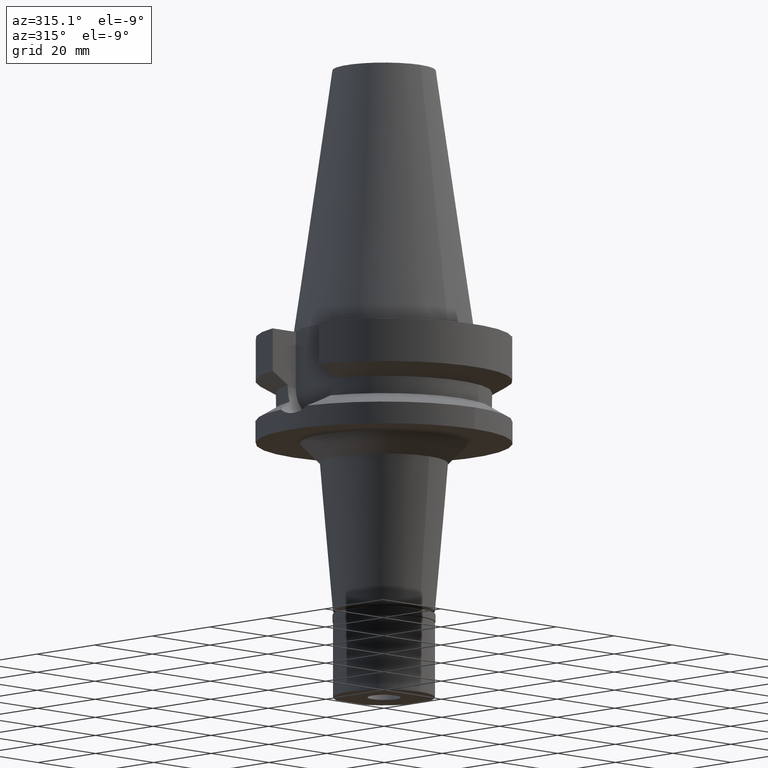
[diagram: clean part render]
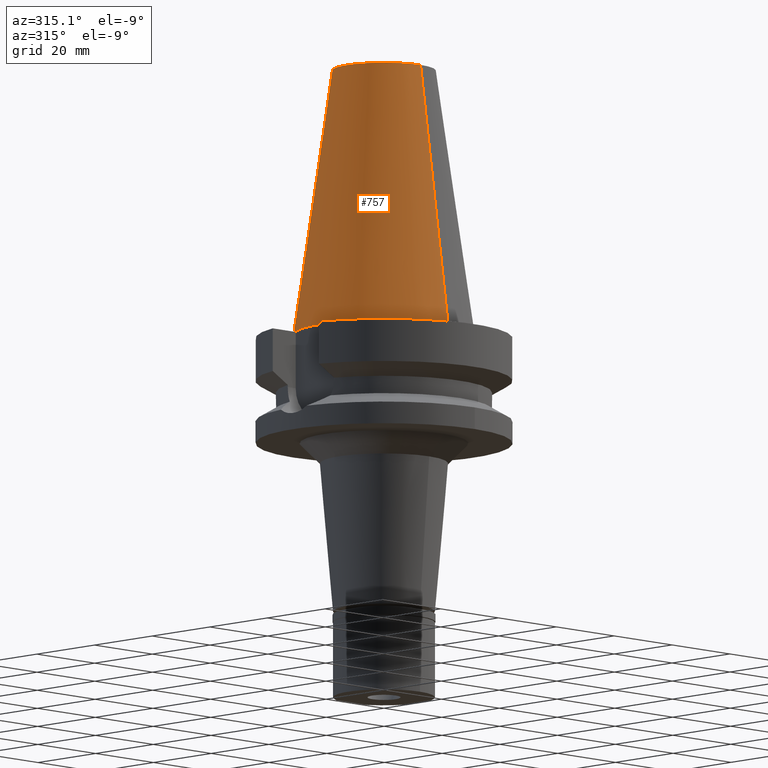
[diagram: same view with one face highlighted and labeled with its STEP entity id]
A machine part, auxiliary view. The second image highlights one B-rep face of the part: STEP entity #757.
In plain terms, the highlighted conical surface has half-angle 8.297 deg.
Its self-contained STEP definition (entity closure, byte-faithful):
#60 = EDGE_CURVE ( 'NONE', #2696, #1960, #275, .T. ) ;
#64 = DIRECTION ( 'NONE',  ( 0.0000000000000000000, 0.0000000000000000000, -1.000000000000000000 ) ) ;
#87 = AXIS2_PLACEMENT_3D ( 'NONE', #1161, #1845, #2828 ) ;
#182 = VECTOR ( 'NONE', #2851, 1000.000000000000114 ) ;
#191 = ORIENTED_EDGE ( 'NONE', *, *, #852, .T. ) ;
#213 = CARTESIAN_POINT ( 'NONE',  ( 0.0000000000000000000, 12.68766899429999917, 65.40000000000000568 ) ) ;
#235 = VECTOR ( 'NONE', #1541, 1000.000000000000114 ) ;
#259 = ORIENTED_EDGE ( 'NONE', *, *, #1562, .F. ) ;
#275 = CIRCLE ( 'NONE', #2423, 12.68766899429999917 ) ;
#401 = DIRECTION ( 'NONE',  ( 0.0000000000000000000, 0.0000000000000000000, -1.000000000000000000 ) ) ;
#452 = DIRECTION ( 'NONE',  ( 0.0000000000000000000, -1.000000000000000000, 0.0000000000000000000 ) ) ;
#624 = CARTESIAN_POINT ( 'NONE',  ( 0.0000000000000000000, 22.22500000000000142, 9.237055564880999494E-14 ) ) ;
#669 = VERTEX_POINT ( 'NONE', #624 ) ;
#749 = CARTESIAN_POINT ( 'NONE',  ( 0.0000000000000000000, 1.625106302469000024E-14, 65.40000000000000568 ) ) ;
#757 = ADVANCED_FACE ( 'NONE', ( #1585 ), #1106, .T. ) ;
#807 = CARTESIAN_POINT ( 'NONE',  ( 0.0000000000000000000, -22.22500000000000142, 9.237055564880999494E-14 ) ) ;
#808 = CARTESIAN_POINT ( 'NONE',  ( 0.0000000000000000000, -12.68766899429999917, 65.40000000000000568 ) ) ;
#852 = EDGE_CURVE ( 'NONE', #1960, #669, #1679, .T. ) ;
#1034 = DIRECTION ( 'NONE',  ( 0.0000000000000000000, -1.000000000000000000, 0.0000000000000000000 ) ) ;
#1082 = LINE ( 'NONE', #808, #235 ) ;
#1106 = CONICAL_SURFACE ( 'NONE', #1854, 17.45633449714999941, 0.1448099680379422438 ) ;
#1161 = CARTESIAN_POINT ( 'NONE',  ( 0.0000000000000000000, 1.625106302469000024E-14, 2.842170943039999687E-14 ) ) ;
#1285 = EDGE_CURVE ( 'NONE', #2696, #2042, #1082, .T. ) ;
#1541 = DIRECTION ( 'NONE',  ( 0.0000000000000000000, -0.1443043893539925626, -0.9895333461855498891 ) ) ;
#1562 = EDGE_CURVE ( 'NONE', #2042, #669, #2992, .T. ) ;
#1585 = FACE_OUTER_BOUND ( 'NONE', #2464, .T. ) ;
#1619 = CARTESIAN_POINT ( 'NONE',  ( 0.0000000000000000000, 1.625106302469000024E-14, 32.70000000000000284 ) ) ;
#1631 = CARTESIAN_POINT ( 'NONE',  ( 0.0000000000000000000, -12.68766899429999917, 65.40000000000000568 ) ) ;
#1679 = LINE ( 'NONE', #213, #182 ) ;
#1719 = CARTESIAN_POINT ( 'NONE',  ( 0.0000000000000000000, 12.68766899429999917, 65.40000000000000568 ) ) ;
#1845 = DIRECTION ( 'NONE',  ( 0.0000000000000000000, 0.0000000000000000000, -1.000000000000000000 ) ) ;
#1854 = AXIS2_PLACEMENT_3D ( 'NONE', #1619, #401, #452 ) ;
#1960 = VERTEX_POINT ( 'NONE', #1719 ) ;
#2042 = VERTEX_POINT ( 'NONE', #807 ) ;
#2423 = AXIS2_PLACEMENT_3D ( 'NONE', #749, #64, #1034 ) ;
#2432 = ORIENTED_EDGE ( 'NONE', *, *, #1285, .F. ) ;
#2464 = EDGE_LOOP ( 'NONE', ( #259, #2432, #2598, #191 ) ) ;
#2598 = ORIENTED_EDGE ( 'NONE', *, *, #60, .T. ) ;
#2696 = VERTEX_POINT ( 'NONE', #1631 ) ;
#2828 = DIRECTION ( 'NONE',  ( 0.0000000000000000000, -1.000000000000000000, 0.0000000000000000000 ) ) ;
#2851 = DIRECTION ( 'NONE',  ( 0.0000000000000000000, 0.1443043893539925626, -0.9895333461855498891 ) ) ;
#2992 = CIRCLE ( 'NONE', #87, 22.22500000000000142 ) ;